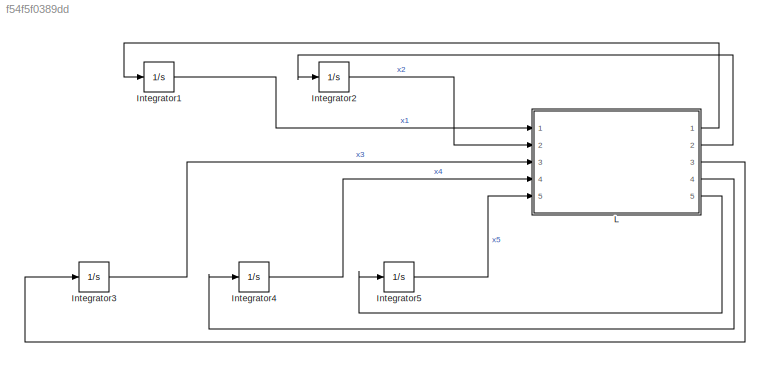
MODEL slx_f54f5f0389dd
KIND model
CONFIG AbsTol = auto
CONFIG EnableMultiTasking = off
CONFIG FixedStep = 0.1
CONFIG MaxStep = auto
CONFIG MinStep = auto
CONFIG RelTol = 1e-3
CONFIG SampleTimeConstraint = Unconstrained
CONFIG Solver = FixedStepAuto
CONFIG SolverName = FixedStepAuto
CONFIG StartTime = 0.0
CONFIG StopTime = 100
BLOCK [Integrator] Integrator1
  InitialCondition = 4
  Ports = [1, 1]
BLOCK [Integrator] Integrator2
  InitialCondition = 5
  Ports = [1, 1]
BLOCK [Integrator] Integrator3
  InitialCondition = 6
  Ports = [1, 1]
BLOCK [Integrator] Integrator4
  InitialCondition = 7
  Ports = [1, 1]
BLOCK [Integrator] Integrator5
  InitialCondition = 8
  Ports = [1, 1]
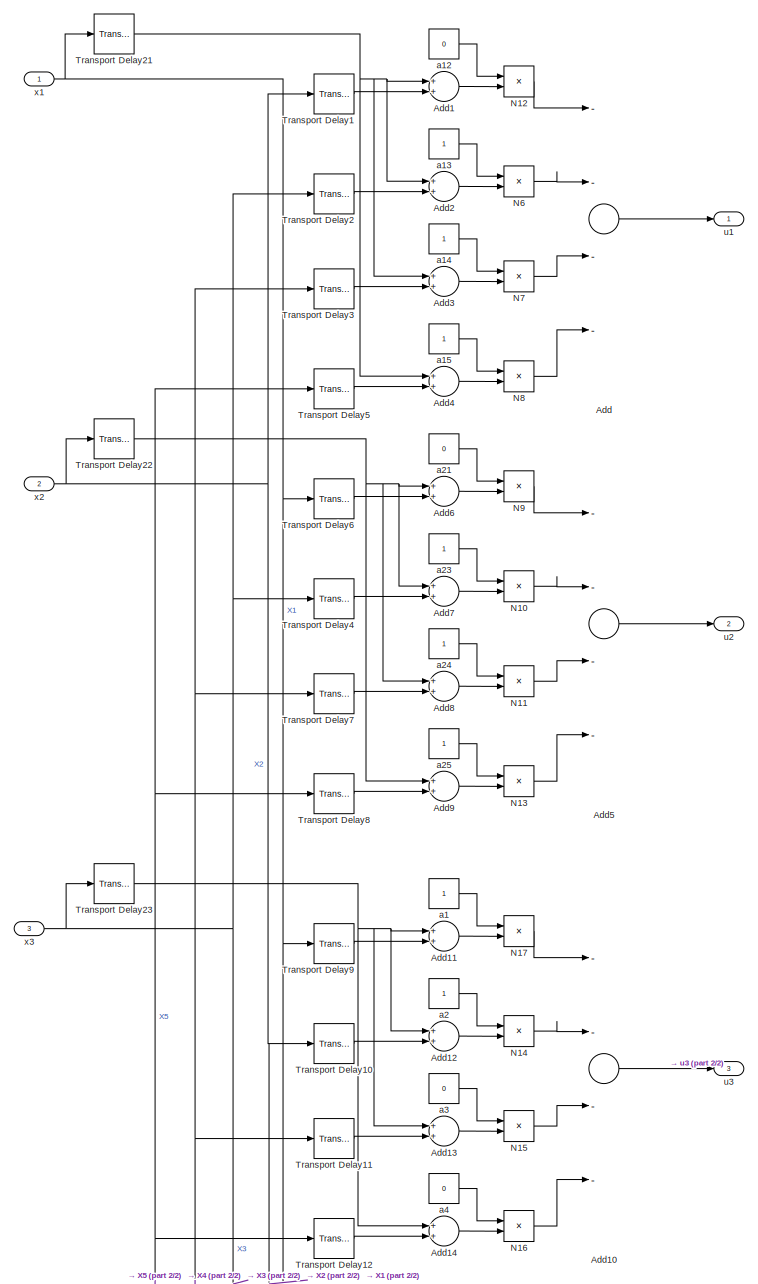
[diagram: L - part 1/2, full width, top band]
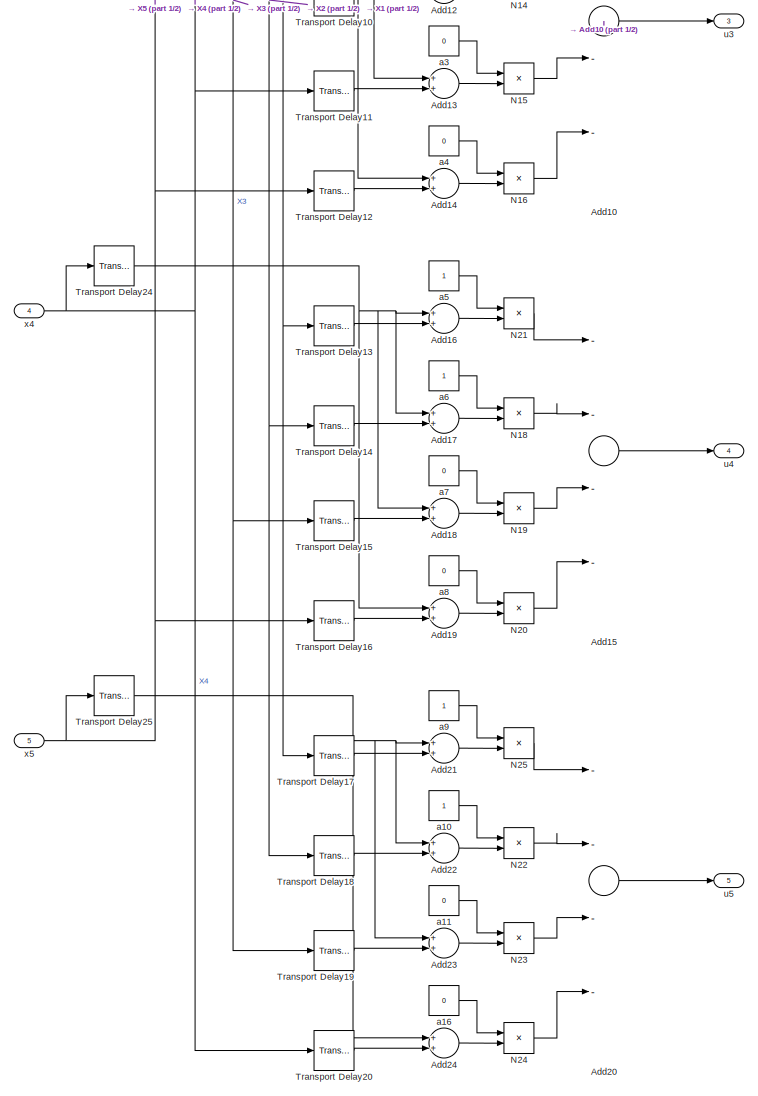
[diagram: L - part 2/2, full width, bottom band]
BLOCK [SubSystem] L
  Ports = [5, 5]
  RequestExecContextInheritance = off
BLOCK [Sum] L/Add
  InputSameDT = off
  Inputs = ----
  OutDataTypeStr = Inherit: Inherit via internal rule
  Ports = [4, 1]
  SaturateOnIntegerOverflow = off
BLOCK [Sum] L/Add1
  InputSameDT = off
  OutDataTypeStr = Inherit: Inherit via internal rule
  Ports = [2, 1]
  SaturateOnIntegerOverflow = off
BLOCK [Sum] L/Add10
  InputSameDT = off
  Inputs = ----
  OutDataTypeStr = Inherit: Inherit via internal rule
  Ports = [4, 1]
  SaturateOnIntegerOverflow = off
BLOCK [Sum] L/Add11
  InputSameDT = off
  OutDataTypeStr = Inherit: Inherit via internal rule
  Ports = [2, 1]
  SaturateOnIntegerOverflow = off
BLOCK [Sum] L/Add12
  InputSameDT = off
  OutDataTypeStr = Inherit: Inherit via internal rule
  Ports = [2, 1]
  SaturateOnIntegerOverflow = off
BLOCK [Sum] L/Add13
  InputSameDT = off
  OutDataTypeStr = Inherit: Inherit via internal rule
  Ports = [2, 1]
  SaturateOnIntegerOverflow = off
BLOCK [Sum] L/Add14
  InputSameDT = off
  OutDataTypeStr = Inherit: Inherit via internal rule
  Ports = [2, 1]
  SaturateOnIntegerOverflow = off
BLOCK [Sum] L/Add15
  InputSameDT = off
  Inputs = ----
  OutDataTypeStr = Inherit: Inherit via internal rule
  Ports = [4, 1]
  SaturateOnIntegerOverflow = off
BLOCK [Sum] L/Add16
  InputSameDT = off
  OutDataTypeStr = Inherit: Inherit via internal rule
  Ports = [2, 1]
  SaturateOnIntegerOverflow = off
BLOCK [Sum] L/Add17
  InputSameDT = off
  OutDataTypeStr = Inherit: Inherit via internal rule
  Ports = [2, 1]
  SaturateOnIntegerOverflow = off
BLOCK [Sum] L/Add18
  InputSameDT = off
  OutDataTypeStr = Inherit: Inherit via internal rule
  Ports = [2, 1]
  SaturateOnIntegerOverflow = off
BLOCK [Sum] L/Add19
  InputSameDT = off
  OutDataTypeStr = Inherit: Inherit via internal rule
  Ports = [2, 1]
  SaturateOnIntegerOverflow = off
BLOCK [Sum] L/Add2
  InputSameDT = off
  OutDataTypeStr = Inherit: Inherit via internal rule
  Ports = [2, 1]
  SaturateOnIntegerOverflow = off
BLOCK [Sum] L/Add20
  InputSameDT = off
  Inputs = ----
  OutDataTypeStr = Inherit: Inherit via internal rule
  Ports = [4, 1]
  SaturateOnIntegerOverflow = off
BLOCK [Sum] L/Add21
  InputSameDT = off
  OutDataTypeStr = Inherit: Inherit via internal rule
  Ports = [2, 1]
  SaturateOnIntegerOverflow = off
BLOCK [Sum] L/Add22
  InputSameDT = off
  OutDataTypeStr = Inherit: Inherit via internal rule
  Ports = [2, 1]
  SaturateOnIntegerOverflow = off
BLOCK [Sum] L/Add23
  InputSameDT = off
  OutDataTypeStr = Inherit: Inherit via internal rule
  Ports = [2, 1]
  SaturateOnIntegerOverflow = off
BLOCK [Sum] L/Add24
  InputSameDT = off
  OutDataTypeStr = Inherit: Inherit via internal rule
  Ports = [2, 1]
  SaturateOnIntegerOverflow = off
BLOCK [Sum] L/Add3
  InputSameDT = off
  OutDataTypeStr = Inherit: Inherit via internal rule
  Ports = [2, 1]
  SaturateOnIntegerOverflow = off
BLOCK [Sum] L/Add4
  InputSameDT = off
  OutDataTypeStr = Inherit: Inherit via internal rule
  Ports = [2, 1]
  SaturateOnIntegerOverflow = off
BLOCK [Sum] L/Add5
  InputSameDT = off
  Inputs = ----
  OutDataTypeStr = Inherit: Inherit via internal rule
  Ports = [4, 1]
  SaturateOnIntegerOverflow = off
BLOCK [Sum] L/Add6
  InputSameDT = off
  OutDataTypeStr = Inherit: Inherit via internal rule
  Ports = [2, 1]
  SaturateOnIntegerOverflow = off
BLOCK [Sum] L/Add7
  InputSameDT = off
  OutDataTypeStr = Inherit: Inherit via internal rule
  Ports = [2, 1]
  SaturateOnIntegerOverflow = off
BLOCK [Sum] L/Add8
  InputSameDT = off
  OutDataTypeStr = Inherit: Inherit via internal rule
  Ports = [2, 1]
  SaturateOnIntegerOverflow = off
BLOCK [Sum] L/Add9
  InputSameDT = off
  OutDataTypeStr = Inherit: Inherit via internal rule
  Ports = [2, 1]
  SaturateOnIntegerOverflow = off
BLOCK [Product] L/N10
  InputSameDT = off
  OutDataTypeStr = Inherit: Inherit via internal rule
  Ports = [2, 1]
  RndMeth = Floor
  SaturateOnIntegerOverflow = off
BLOCK [Product] L/N11
  InputSameDT = off
  OutDataTypeStr = Inherit: Inherit via internal rule
  Ports = [2, 1]
  RndMeth = Floor
  SaturateOnIntegerOverflow = off
BLOCK [Product] L/N12
  InputSameDT = off
  OutDataTypeStr = Inherit: Inherit via internal rule
  Ports = [2, 1]
  RndMeth = Floor
  SaturateOnIntegerOverflow = off
BLOCK [Product] L/N13
  InputSameDT = off
  OutDataTypeStr = Inherit: Inherit via internal rule
  Ports = [2, 1]
  RndMeth = Floor
  SaturateOnIntegerOverflow = off
BLOCK [Product] L/N14
  InputSameDT = off
  OutDataTypeStr = Inherit: Inherit via internal rule
  Ports = [2, 1]
  RndMeth = Floor
  SaturateOnIntegerOverflow = off
BLOCK [Product] L/N15
  InputSameDT = off
  OutDataTypeStr = Inherit: Inherit via internal rule
  Ports = [2, 1]
  RndMeth = Floor
  SaturateOnIntegerOverflow = off
BLOCK [Product] L/N16
  InputSameDT = off
  OutDataTypeStr = Inherit: Inherit via internal rule
  Ports = [2, 1]
  RndMeth = Floor
  SaturateOnIntegerOverflow = off
BLOCK [Product] L/N17
  InputSameDT = off
  OutDataTypeStr = Inherit: Inherit via internal rule
  Ports = [2, 1]
  RndMeth = Floor
  SaturateOnIntegerOverflow = off
BLOCK [Product] L/N18
  InputSameDT = off
  OutDataTypeStr = Inherit: Inherit via internal rule
  Ports = [2, 1]
  RndMeth = Floor
  SaturateOnIntegerOverflow = off
BLOCK [Product] L/N19
  InputSameDT = off
  OutDataTypeStr = Inherit: Inherit via internal rule
  Ports = [2, 1]
  RndMeth = Floor
  SaturateOnIntegerOverflow = off
BLOCK [Product] L/N20
  InputSameDT = off
  OutDataTypeStr = Inherit: Inherit via internal rule
  Ports = [2, 1]
  RndMeth = Floor
  SaturateOnIntegerOverflow = off
BLOCK [Product] L/N21
  InputSameDT = off
  OutDataTypeStr = Inherit: Inherit via internal rule
  Ports = [2, 1]
  RndMeth = Floor
  SaturateOnIntegerOverflow = off
BLOCK [Product] L/N22
  InputSameDT = off
  OutDataTypeStr = Inherit: Inherit via internal rule
  Ports = [2, 1]
  RndMeth = Floor
  SaturateOnIntegerOverflow = off
BLOCK [Product] L/N23
  InputSameDT = off
  OutDataTypeStr = Inherit: Inherit via internal rule
  Ports = [2, 1]
  RndMeth = Floor
  SaturateOnIntegerOverflow = off
BLOCK [Product] L/N24
  InputSameDT = off
  OutDataTypeStr = Inherit: Inherit via internal rule
  Ports = [2, 1]
  RndMeth = Floor
  SaturateOnIntegerOverflow = off
BLOCK [Product] L/N25
  InputSameDT = off
  OutDataTypeStr = Inherit: Inherit via internal rule
  Ports = [2, 1]
  RndMeth = Floor
  SaturateOnIntegerOverflow = off
BLOCK [Product] L/N6
  InputSameDT = off
  OutDataTypeStr = Inherit: Inherit via internal rule
  Ports = [2, 1]
  RndMeth = Floor
  SaturateOnIntegerOverflow = off
BLOCK [Product] L/N7
  InputSameDT = off
  OutDataTypeStr = Inherit: Inherit via internal rule
  Ports = [2, 1]
  RndMeth = Floor
  SaturateOnIntegerOverflow = off
BLOCK [Product] L/N8
  InputSameDT = off
  OutDataTypeStr = Inherit: Inherit via internal rule
  Ports = [2, 1]
  RndMeth = Floor
  SaturateOnIntegerOverflow = off
BLOCK [Product] L/N9
  InputSameDT = off
  OutDataTypeStr = Inherit: Inherit via internal rule
  Ports = [2, 1]
  RndMeth = Floor
  SaturateOnIntegerOverflow = off
BLOCK [TransportDelay] L/Transport Delay1
  DelayTime = 0.4
  Ports = [1, 1]
BLOCK [TransportDelay] L/Transport Delay10
  DelayTime = 0.4
  Ports = [1, 1]
BLOCK [TransportDelay] L/Transport Delay11
  DelayTime = 0.4
  Ports = [1, 1]
BLOCK [TransportDelay] L/Transport Delay12
  DelayTime = 0.4
  Ports = [1, 1]
BLOCK [TransportDelay] L/Transport Delay13
  DelayTime = 0.4
  Ports = [1, 1]
BLOCK [TransportDelay] L/Transport Delay14
  DelayTime = 0.4
  Ports = [1, 1]
BLOCK [TransportDelay] L/Transport Delay15
  DelayTime = 0.4
  Ports = [1, 1]
BLOCK [TransportDelay] L/Transport Delay16
  DelayTime = 0.4
  Ports = [1, 1]
BLOCK [TransportDelay] L/Transport Delay17
  DelayTime = 0.4
  Ports = [1, 1]
BLOCK [TransportDelay] L/Transport Delay18
  DelayTime = 0.4
  Ports = [1, 1]
BLOCK [TransportDelay] L/Transport Delay19
  DelayTime = 0.4
  Ports = [1, 1]
BLOCK [TransportDelay] L/Transport Delay2
  DelayTime = 0.4
  Ports = [1, 1]
BLOCK [TransportDelay] L/Transport Delay20
  DelayTime = 0.4
  Ports = [1, 1]
BLOCK [TransportDelay] L/Transport Delay21
  DelayTime = 0.26
  Ports = [1, 1]
BLOCK [TransportDelay] L/Transport Delay22
  DelayTime = 0.26
  Ports = [1, 1]
BLOCK [TransportDelay] L/Transport Delay23
  DelayTime = 0.1
  Ports = [1, 1]
BLOCK [TransportDelay] L/Transport Delay24
  DelayTime = 0.1
  Ports = [1, 1]
BLOCK [TransportDelay] L/Transport Delay25
  DelayTime = 0.1
  Ports = [1, 1]
BLOCK [TransportDelay] L/Transport Delay3
  DelayTime = 0.4
  Ports = [1, 1]
BLOCK [TransportDelay] L/Transport Delay4
  DelayTime = 0.4
  Ports = [1, 1]
BLOCK [TransportDelay] L/Transport Delay5
  DelayTime = 0.4
  Ports = [1, 1]
BLOCK [TransportDelay] L/Transport Delay6
  DelayTime = 0.4
  Ports = [1, 1]
BLOCK [TransportDelay] L/Transport Delay7
  DelayTime = 0.4
  Ports = [1, 1]
BLOCK [TransportDelay] L/Transport Delay8
  DelayTime = 0.4
  Ports = [1, 1]
BLOCK [TransportDelay] L/Transport Delay9
  DelayTime = 0.4
  Ports = [1, 1]
BLOCK [Constant] L/a1
BLOCK [Constant] L/a10
BLOCK [Constant] L/a11
  Value = 0
BLOCK [Constant] L/a12
  Value = 0
BLOCK [Constant] L/a13
BLOCK [Constant] L/a14
BLOCK [Constant] L/a15
BLOCK [Constant] L/a16
  Value = 0
BLOCK [Constant] L/a2
BLOCK [Constant] L/a21
  Value = 0
BLOCK [Constant] L/a23
BLOCK [Constant] L/a24
BLOCK [Constant] L/a25
BLOCK [Constant] L/a3
  Value = 0
BLOCK [Constant] L/a4
  Value = 0
BLOCK [Constant] L/a5
BLOCK [Constant] L/a6
BLOCK [Constant] L/a7
  Value = 0
BLOCK [Constant] L/a8
  Value = 0
BLOCK [Constant] L/a9
BLOCK [Outport] L/u1
  IconDisplay = Port number
BLOCK [Outport] L/u2
  IconDisplay = Port number
  Port = 2
BLOCK [Outport] L/u3
  IconDisplay = Port number
  Port = 3
BLOCK [Outport] L/u4
  IconDisplay = Port number
  Port = 4
BLOCK [Outport] L/u5
  IconDisplay = Port number
  Port = 5
BLOCK [Inport] L/x1
  IconDisplay = Port number
BLOCK [Inport] L/x2
  IconDisplay = Port number
  Port = 2
BLOCK [Inport] L/x3
  IconDisplay = Port number
  Port = 3
BLOCK [Inport] L/x4
  IconDisplay = Port number
  Port = 4
BLOCK [Inport] L/x5
  IconDisplay = Port number
  Port = 5
LINE Integrator1:1 -> L:1
LINE Integrator2:1 -> L:2
LINE Integrator3:1 -> L:3
LINE Integrator4:1 -> L:4
LINE Integrator5:1 -> L:5
LINE L/Add10:1 -> L/u3:1
LINE L/Add11:1 -> L/N17:2
LINE L/Add12:1 -> L/N14:2
LINE L/Add13:1 -> L/N15:2
LINE L/Add14:1 -> L/N16:2
LINE L/Add15:1 -> L/u4:1
LINE L/Add16:1 -> L/N21:2
LINE L/Add17:1 -> L/N18:2
LINE L/Add18:1 -> L/N19:2
LINE L/Add19:1 -> L/N20:2
LINE L/Add1:1 -> L/N12:2
LINE L/Add20:1 -> L/u5:1
LINE L/Add21:1 -> L/N25:2
LINE L/Add22:1 -> L/N22:2
LINE L/Add23:1 -> L/N23:2
LINE L/Add24:1 -> L/N24:2
LINE L/Add2:1 -> L/N6:2
LINE L/Add3:1 -> L/N7:2
LINE L/Add4:1 -> L/N8:2
LINE L/Add5:1 -> L/u2:1
LINE L/Add6:1 -> L/N9:2
LINE L/Add7:1 -> L/N10:2
LINE L/Add8:1 -> L/N11:2
LINE L/Add9:1 -> L/N13:2
LINE L/Add:1 -> L/u1:1
LINE L/N10:1 -> L/Add5:2
LINE L/N11:1 -> L/Add5:3
LINE L/N12:1 -> L/Add:1
LINE L/N13:1 -> L/Add5:4
LINE L/N14:1 -> L/Add10:2
LINE L/N15:1 -> L/Add10:3
LINE L/N16:1 -> L/Add10:4
LINE L/N17:1 -> L/Add10:1
LINE L/N18:1 -> L/Add15:2
LINE L/N19:1 -> L/Add15:3
LINE L/N20:1 -> L/Add15:4
LINE L/N21:1 -> L/Add15:1
LINE L/N22:1 -> L/Add20:2
LINE L/N23:1 -> L/Add20:3
LINE L/N24:1 -> L/Add20:4
LINE L/N25:1 -> L/Add20:1
LINE L/N6:1 -> L/Add:2
LINE L/N7:1 -> L/Add:3
LINE L/N8:1 -> L/Add:4
LINE L/N9:1 -> L/Add5:1
LINE L/Transport Delay10:1 -> L/Add12:2
LINE L/Transport Delay11:1 -> L/Add13:2
LINE L/Transport Delay12:1 -> L/Add14:2
LINE L/Transport Delay13:1 -> L/Add16:2
LINE L/Transport Delay14:1 -> L/Add17:2
LINE L/Transport Delay15:1 -> L/Add18:2
LINE L/Transport Delay16:1 -> L/Add19:2
LINE L/Transport Delay17:1 -> L/Add21:2
LINE L/Transport Delay18:1 -> L/Add22:2
LINE L/Transport Delay19:1 -> L/Add23:2
LINE L/Transport Delay1:1 -> L/Add1:2
LINE L/Transport Delay20:1 -> L/Add24:2
NET L/Transport Delay21:1 -> L/Add1:1, L/Add2:1, L/Add3:1, L/Add4:1
NET L/Transport Delay22:1 -> L/Add6:1, L/Add7:1, L/Add8:1, L/Add9:1
NET L/Transport Delay23:1 -> L/Add11:1, L/Add12:1, L/Add13:1, L/Add14:1
NET L/Transport Delay24:1 -> L/Add16:1, L/Add17:1, L/Add18:1, L/Add19:1
NET L/Transport Delay25:1 -> L/Add21:1, L/Add22:1, L/Add23:1, L/Add24:1
LINE L/Transport Delay2:1 -> L/Add2:2
LINE L/Transport Delay3:1 -> L/Add3:2
LINE L/Transport Delay4:1 -> L/Add7:2
LINE L/Transport Delay5:1 -> L/Add4:2
LINE L/Transport Delay6:1 -> L/Add6:2
LINE L/Transport Delay7:1 -> L/Add8:2
LINE L/Transport Delay8:1 -> L/Add9:2
LINE L/Transport Delay9:1 -> L/Add11:2
LINE L/a10:1 -> L/N22:1
LINE L/a11:1 -> L/N23:1
LINE L/a12:1 -> L/N12:1
LINE L/a13:1 -> L/N6:1
LINE L/a14:1 -> L/N7:1
LINE L/a15:1 -> L/N8:1
LINE L/a16:1 -> L/N24:1
LINE L/a1:1 -> L/N17:1
LINE L/a21:1 -> L/N9:1
LINE L/a23:1 -> L/N10:1
LINE L/a24:1 -> L/N11:1
LINE L/a25:1 -> L/N13:1
LINE L/a2:1 -> L/N14:1
LINE L/a3:1 -> L/N15:1
LINE L/a4:1 -> L/N16:1
LINE L/a5:1 -> L/N21:1
LINE L/a6:1 -> L/N18:1
LINE L/a7:1 -> L/N19:1
LINE L/a8:1 -> L/N20:1
LINE L/a9:1 -> L/N25:1
NET L/x1:1 -> L/Transport Delay13:1, L/Transport Delay17:1, L/Transport Delay21:1, L/Transport Delay6:1, L/Transport Delay9:1
NET L/x2:1 -> L/Transport Delay10:1, L/Transport Delay14:1, L/Transport Delay18:1, L/Transport Delay1:1, L/Transport Delay22:1
NET L/x3:1 -> L/Transport Delay15:1, L/Transport Delay19:1, L/Transport Delay23:1, L/Transport Delay2:1, L/Transport Delay4:1
NET L/x4:1 -> L/Transport Delay11:1, L/Transport Delay20:1, L/Transport Delay24:1, L/Transport Delay3:1, L/Transport Delay7:1
NET L/x5:1 -> L/Transport Delay12:1, L/Transport Delay16:1, L/Transport Delay25:1, L/Transport Delay5:1, L/Transport Delay8:1
LINE L:1 -> Integrator1:1
LINE L:2 -> Integrator2:1
LINE L:3 -> Integrator3:1
LINE L:4 -> Integrator4:1
LINE L:5 -> Integrator5:1
note: NET lines group one-source signal fan-out (src -> all destinations, sorted); 1:1 wires keep LINE
